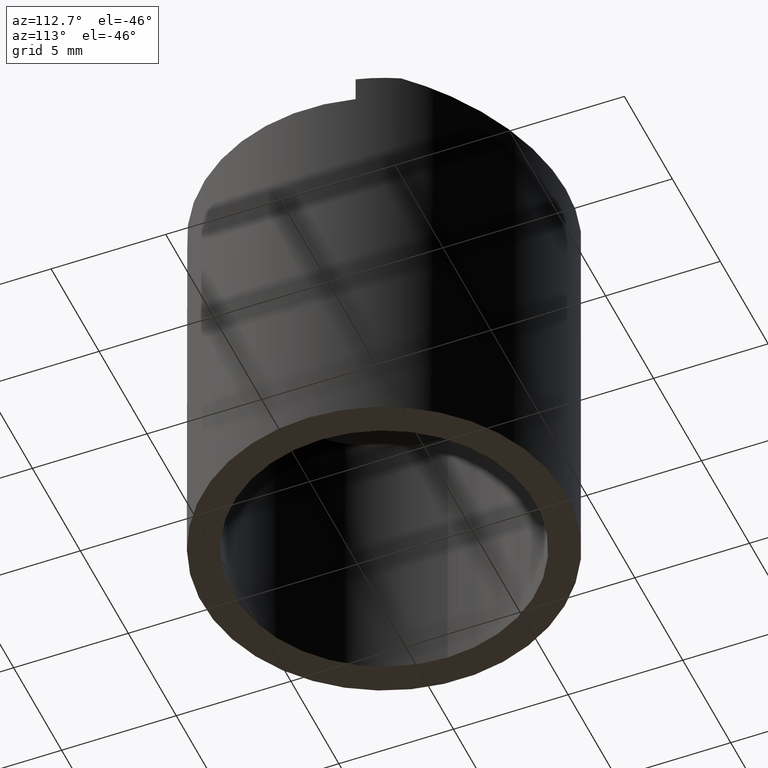
[diagram: clean part render]
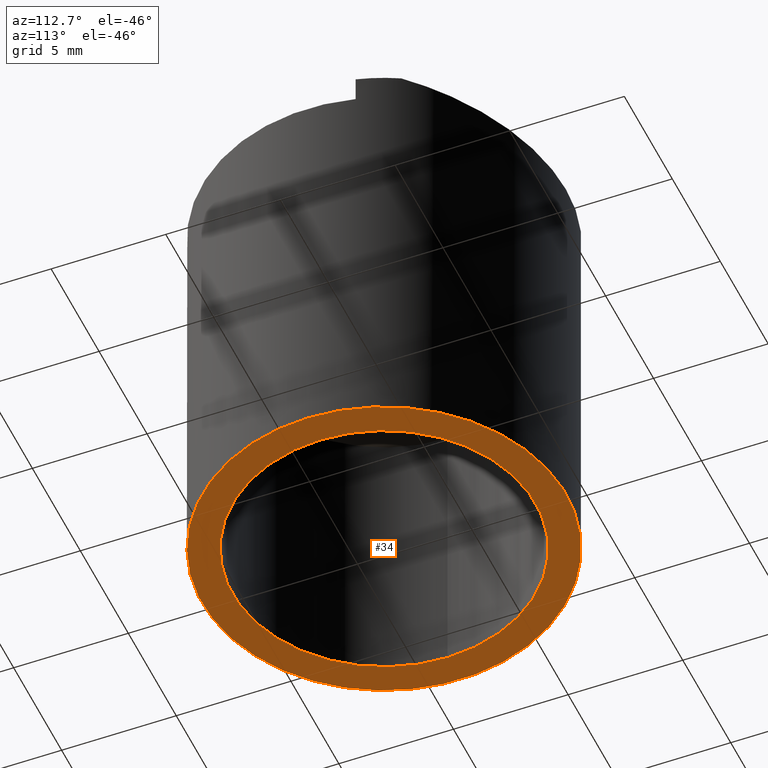
[diagram: same view with one face highlighted and labeled with its STEP entity id]
A machine part, auxiliary view. The second image highlights one B-rep face of the part: STEP entity #34.
In plain terms, the highlighted planar face has unit normal (0, 0, 1).
Its self-contained STEP definition (entity closure, byte-faithful):
#5 = EDGE_CURVE ( 'NONE', #282, #282, #287, .T. ) ;
#9 = EDGE_CURVE ( 'NONE', #255, #255, #292, .T. ) ;
#34 = ADVANCED_FACE ( 'NONE', ( #297, #210 ), #118, .F. ) ;
#59 = AXIS2_PLACEMENT_3D ( 'NONE', #88, #114, #129 ) ;
#67 = AXIS2_PLACEMENT_3D ( 'NONE', #98, #83, #85 ) ;
#70 = AXIS2_PLACEMENT_3D ( 'NONE', #150, #153, #154 ) ;
#83 = DIRECTION ( 'NONE',  ( 0.0000000000000000000, 0.0000000000000000000, -1.000000000000000000 ) ) ;
#85 = DIRECTION ( 'NONE',  ( -1.000000000000000000, 0.0000000000000000000, 0.0000000000000000000 ) ) ;
#88 = CARTESIAN_POINT ( 'NONE',  ( 5.960459999999999900E-007, 0.04560001194499999800, 0.0000000000000000000 ) ) ;
#98 = CARTESIAN_POINT ( 'NONE',  ( 5.960459999999999900E-007, 0.04560001194499999800, 0.0000000000000000000 ) ) ;
#104 = CARTESIAN_POINT ( 'NONE',  ( -0.2599994039540000100, 0.04560001194499999800, 0.0000000000000000000 ) ) ;
#108 = CARTESIAN_POINT ( 'NONE',  ( 0.3125005960460000000, 0.04560001194499999800, 0.0000000000000000000 ) ) ;
#114 = DIRECTION ( 'NONE',  ( 0.0000000000000000000, 0.0000000000000000000, 1.000000000000000000 ) ) ;
#118 = PLANE ( 'NONE',  #59 ) ;
#129 = DIRECTION ( 'NONE',  ( 1.000000000000000000, 0.0000000000000000000, 0.0000000000000000000 ) ) ;
#150 = CARTESIAN_POINT ( 'NONE',  ( 5.960459999999999900E-007, 0.04560001194499999800, 0.0000000000000000000 ) ) ;
#153 = DIRECTION ( 'NONE',  ( 0.0000000000000000000, 0.0000000000000000000, 1.000000000000000000 ) ) ;
#154 = DIRECTION ( 'NONE',  ( 1.000000000000000000, 0.0000000000000000000, 0.0000000000000000000 ) ) ;
#210 = FACE_OUTER_BOUND ( 'NONE', #266, .T. ) ;
#212 = ORIENTED_EDGE ( 'NONE', *, *, #5, .F. ) ;
#255 = VERTEX_POINT ( 'NONE', #108 ) ;
#262 = EDGE_LOOP ( 'NONE', ( #212 ) ) ;
#266 = EDGE_LOOP ( 'NONE', ( #276 ) ) ;
#276 = ORIENTED_EDGE ( 'NONE', *, *, #9, .F. ) ;
#282 = VERTEX_POINT ( 'NONE', #104 ) ;
#287 = CIRCLE ( 'NONE', #67, 0.2600000000000000100 ) ;
#292 = CIRCLE ( 'NONE', #70, 0.3125000000000000000 ) ;
#297 = FACE_BOUND ( 'NONE', #262, .T. ) ;